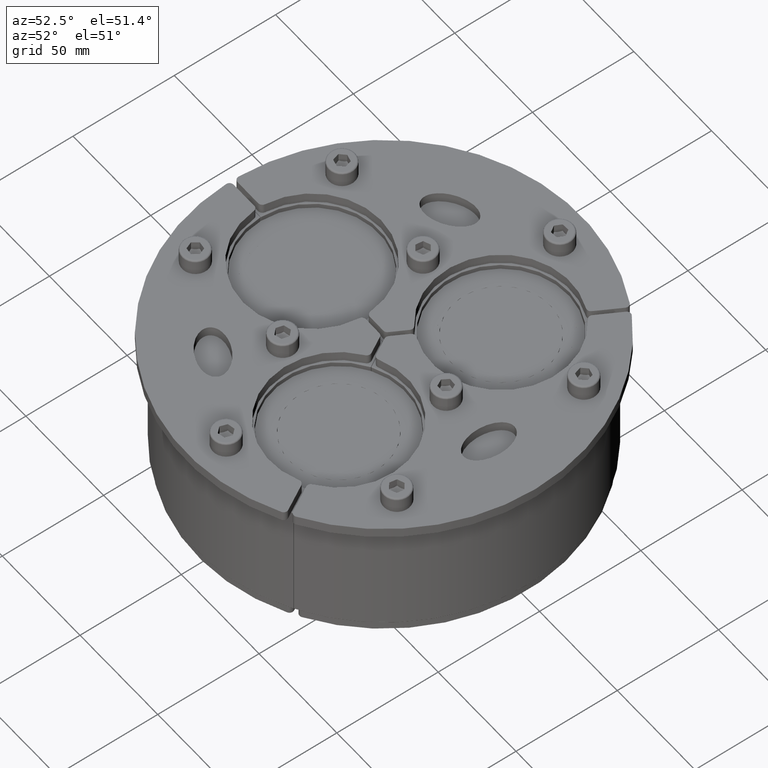
[diagram: clean part render]
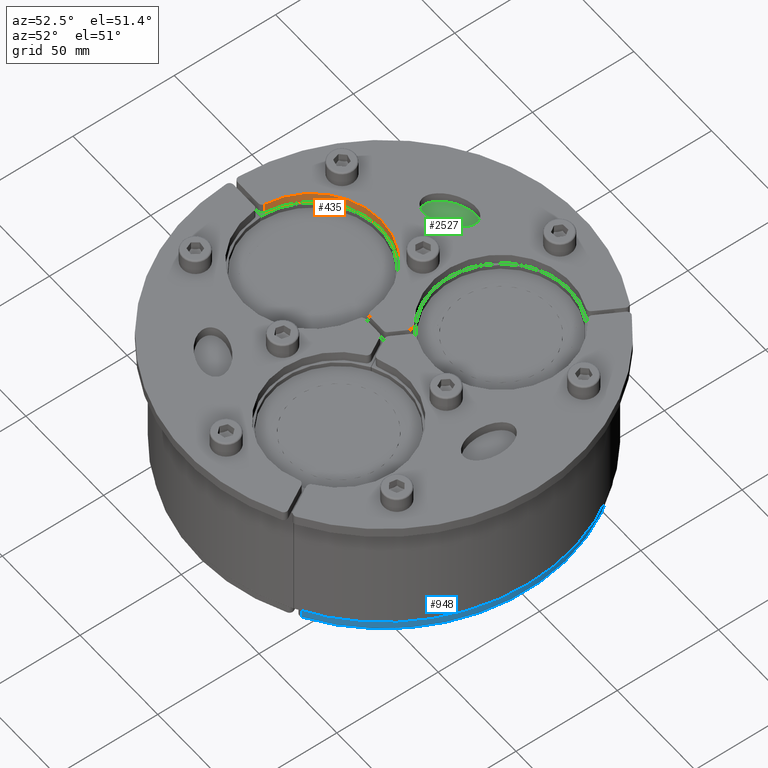
[diagram: same view with three faces highlighted in distinct colors, each labeled with its STEP entity id]
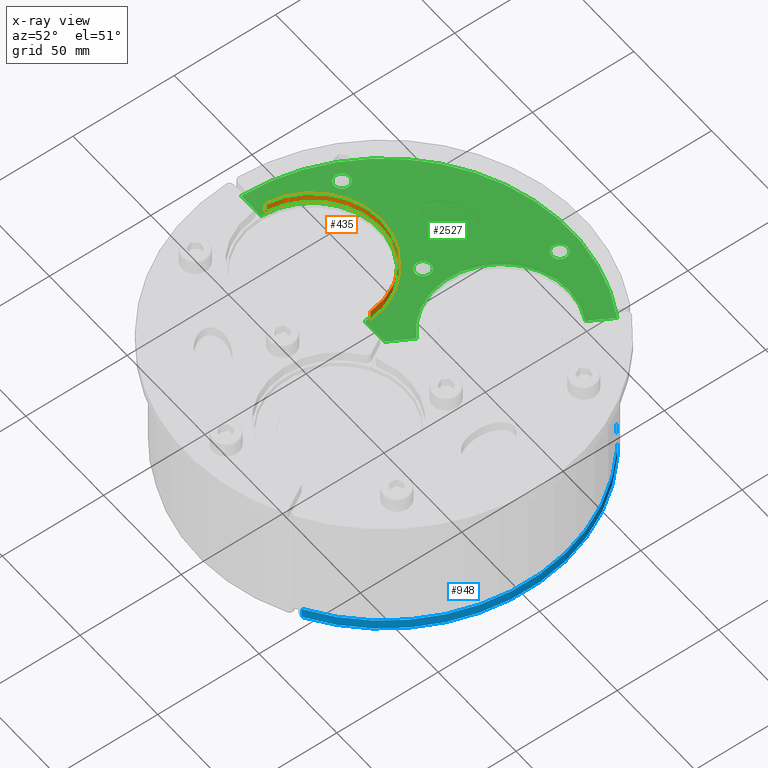
[diagram: x-ray of the same camera — body ghosted, the three highlighted faces saturated]
A machine part, auxiliary view with three faces highlighted in distinct colors.
The next image is the same camera in x-ray (body ghosted, the three faces saturated) — at least one of them is partly hidden behind the body in this view.
Their STEP definitions:

[orange] entity #435 — the highlighted cylindrical surface (partial cylindrical patch) has radius 34 mm, axis along (-0, -0, 1).
#245=CARTESIAN_POINT('',(37.612130742004354,70.812788092741613,0.0));
#246=VERTEX_POINT('',#245);
#254=CARTESIAN_POINT('',(3.730391969883773,12.127895090652308,0.0));
#255=VERTEX_POINT('',#254);
#256=CARTESIAN_POINT('',(23.124999999999972,40.0536749250303,0.0));
#257=DIRECTION('',(0.0,0.0,1.0));
#258=DIRECTION('',(-1.0,0.0,0.0));
#259=AXIS2_PLACEMENT_3D('',#256,#257,#258);
#260=CIRCLE('',#259,34.0);
#261=EDGE_CURVE('',#246,#255,#260,.T.);
#393=CARTESIAN_POINT('',(37.612130742004354,70.812788092741613,5.0));
#394=VERTEX_POINT('',#393);
#402=CARTESIAN_POINT('',(37.612130742004354,70.812788092741613,5.0));
#403=DIRECTION('',(0.0,0.0,-1.0));
#404=VECTOR('',#403,5.0);
#405=LINE('',#402,#404);
#406=EDGE_CURVE('',#394,#246,#405,.T.);
#411=CARTESIAN_POINT('',(23.124999999999972,40.0536749250303,5.0));
#412=DIRECTION('',(0.0,0.0,-1.0));
#413=DIRECTION('',(-1.0,0.0,0.0));
#414=AXIS2_PLACEMENT_3D('',#411,#412,#413);
#415=CYLINDRICAL_SURFACE('',#414,34.0);
#416=ORIENTED_EDGE('',*,*,#406,.F.);
#417=CARTESIAN_POINT('',(3.730391969883773,12.127895090652308,5.0));
#418=VERTEX_POINT('',#417);
#419=CARTESIAN_POINT('',(23.124999999999972,40.0536749250303,5.0));
#420=DIRECTION('',(0.0,0.0,-1.0));
#421=DIRECTION('',(-1.0,0.0,0.0));
#422=AXIS2_PLACEMENT_3D('',#419,#420,#421);
#423=CIRCLE('',#422,34.0);
#424=EDGE_CURVE('',#418,#394,#423,.T.);
#425=ORIENTED_EDGE('',*,*,#424,.F.);
#426=CARTESIAN_POINT('',(3.730391969883773,12.127895090652308,0.0));
#427=DIRECTION('',(0.0,0.0,1.0));
#428=VECTOR('',#427,5.0);
#429=LINE('',#426,#428);
#430=EDGE_CURVE('',#255,#418,#429,.T.);
#431=ORIENTED_EDGE('',*,*,#430,.F.);
#432=ORIENTED_EDGE('',*,*,#261,.F.);
#433=EDGE_LOOP('',(#416,#425,#431,#432));
#434=FACE_OUTER_BOUND('',#433,.T.);
#435=ADVANCED_FACE('',(#434),#415,.F.);

[blue] entity #948 — the highlighted cylindrical surface (partial cylindrical patch) has radius 91.5 mm, axis along (-0, 0, -1).
#879=CARTESIAN_POINT('',(43.068157551314059,80.73031527954781,5.0));
#880=VERTEX_POINT('',#879);
#898=CARTESIAN_POINT('',(43.068157551314059,80.73031527954781,0.0));
#899=VERTEX_POINT('',#898);
#907=CARTESIAN_POINT('',(43.068157551314066,80.730315279547824,0.0));
#908=DIRECTION('',(0.0,0.0,1.0));
#909=VECTOR('',#908,5.0);
#910=LINE('',#907,#909);
#911=EDGE_CURVE('',#899,#880,#910,.T.);
#916=CARTESIAN_POINT('',(0.0,0.0,0.0));
#917=DIRECTION('',(0.0,0.0,1.0));
#918=DIRECTION('',(0.490505380045763,0.871438163122411,0.0));
#919=AXIS2_PLACEMENT_3D('',#916,#917,#918);
#920=CYLINDRICAL_SURFACE('',#919,91.5);
#921=ORIENTED_EDGE('',*,*,#911,.F.);
#922=CARTESIAN_POINT('',(-91.448582663272475,3.067039106145245,0.0));
#923=VERTEX_POINT('',#922);
#924=CARTESIAN_POINT('',(0.0,0.0,0.0));
#925=DIRECTION('',(0.0,0.0,1.0));
#926=DIRECTION('',(0.490505380045763,0.871438163122411,0.0));
#927=AXIS2_PLACEMENT_3D('',#924,#925,#926);
#928=CIRCLE('',#927,91.5);
#929=EDGE_CURVE('',#899,#923,#928,.T.);
#930=ORIENTED_EDGE('',*,*,#929,.T.);
#931=CARTESIAN_POINT('',(-91.448582663272475,3.067039106145245,5.0));
#932=VERTEX_POINT('',#931);
#933=CARTESIAN_POINT('',(-91.448582663272475,3.067039106145245,5.0));
#934=DIRECTION('',(0.0,0.0,-1.0));
#935=VECTOR('',#934,5.0);
#936=LINE('',#933,#935);
#937=EDGE_CURVE('',#932,#923,#936,.T.);
#938=ORIENTED_EDGE('',*,*,#937,.F.);
#939=CARTESIAN_POINT('',(0.0,0.0,5.0));
#940=DIRECTION('',(0.0,0.0,-1.0));
#941=DIRECTION('',(0.490505380045763,0.871438163122411,0.0));
#942=AXIS2_PLACEMENT_3D('',#939,#940,#941);
#943=CIRCLE('',#942,91.5);
#944=EDGE_CURVE('',#932,#880,#943,.T.);
#945=ORIENTED_EDGE('',*,*,#944,.T.);
#946=EDGE_LOOP('',(#921,#930,#938,#945));
#947=FACE_OUTER_BOUND('',#946,.T.);
#948=ADVANCED_FACE('',(#947),#920,.T.);

[green] entity #2527 — the highlighted planar face has unit normal (0, 0, 1).
#2424=CARTESIAN_POINT('',(9.554909083890347,82.299034146435517,60.0));
#2425=VERTEX_POINT('',#2424);
#2426=CARTESIAN_POINT('',(5.754909083890345,82.299034146435517,60.0));
#2427=DIRECTION('',(0.0,0.0,1.0));
#2428=DIRECTION('',(-1.0,0.0,0.0));
#2429=AXIS2_PLACEMENT_3D('',#2426,#2427,#2428);
#2430=CIRCLE('',#2429,3.800000000000003);
#2431=EDGE_CURVE('',#2425,#2425,#2430,.T.);
#2436=CARTESIAN_POINT('',(-24.444747323088414,42.339544341772388,60.0));
#2437=DIRECTION('',(0.0,0.0,1.0));
#2438=DIRECTION('',(1.0,0.0,0.0));
#2439=AXIS2_PLACEMENT_3D('',#2436,#2437,#2438);
#2440=PLANE('',#2439);
#2441=CARTESIAN_POINT('',(-79.548648621227869,0.300000000000002,60.0));
#2442=VERTEX_POINT('',#2441);
#2443=CARTESIAN_POINT('',(-92.199511929293863,0.299999999999998,60.0));
#2444=VERTEX_POINT('',#2443);
#2445=CARTESIAN_POINT('',(-79.548648621227869,0.300000000000002,60.0));
#2446=DIRECTION('',(-1.0,0.0,0.0));
#2447=VECTOR('',#2446,12.650863308066008);
#2448=LINE('',#2445,#2447);
#2449=EDGE_CURVE('',#2442,#2444,#2448,.T.);
#2450=ORIENTED_EDGE('',*,*,#2449,.F.);
#2451=CARTESIAN_POINT('',(-12.951351378772141,0.300000000000004,60.0));
#2452=VERTEX_POINT('',#2451);
#2453=CARTESIAN_POINT('',(-46.25,0.0,60.0));
#2454=DIRECTION('',(0.0,0.0,1.0));
#2455=DIRECTION('',(0.0,1.0,0.0));
#2456=AXIS2_PLACEMENT_3D('',#2453,#2454,#2455);
#2457=CIRCLE('',#2456,33.299999999999997);
#2458=EDGE_CURVE('',#2452,#2442,#2457,.T.);
#2459=ORIENTED_EDGE('',*,*,#2458,.F.);
#2460=CARTESIAN_POINT('',(-0.173205080756889,0.300000000000002,60.0));
#2461=VERTEX_POINT('',#2460);
#2462=CARTESIAN_POINT('',(-0.173205080756887,0.300000000000002,60.0));
#2463=DIRECTION('',(-1.0,0.0,0.0));
#2464=VECTOR('',#2463,12.778146298015255);
#2465=LINE('',#2462,#2464);
#2466=EDGE_CURVE('',#2461,#2452,#2465,.T.);
#2467=ORIENTED_EDGE('',*,*,#2466,.F.);
#2468=CARTESIAN_POINT('',(6.215868068250727,11.366199307355282,60.0));
#2469=VERTEX_POINT('',#2468);
#2470=CARTESIAN_POINT('',(6.215868068250725,11.366199307355274,60.0));
#2471=DIRECTION('',(-0.5,-0.866025403784439,0.0));
#2472=VECTOR('',#2471,12.778146298015251);
#2473=LINE('',#2470,#2472);
#2474=EDGE_CURVE('',#2469,#2461,#2473,.T.);
#2475=ORIENTED_EDGE('',*,*,#2474,.F.);
#2476=CARTESIAN_POINT('',(39.514516689478569,69.04115054270531,60.0));
#2477=VERTEX_POINT('',#2476);
#2478=CARTESIAN_POINT('',(23.124999999999986,40.0536749250303,60.0));
#2479=DIRECTION('',(0.0,0.0,1.0));
#2480=DIRECTION('',(-0.866025403784439,0.499999999999999,0.0));
#2481=AXIS2_PLACEMENT_3D('',#2478,#2479,#2480);
#2482=CIRCLE('',#2481,33.299999999999997);
#2483=EDGE_CURVE('',#2477,#2469,#2482,.T.);
#2484=ORIENTED_EDGE('',*,*,#2483,.F.);
#2485=CARTESIAN_POINT('',(45.83994834351158,79.997119547294915,60.0));
#2486=VERTEX_POINT('',#2485);
#2487=CARTESIAN_POINT('',(45.83994834351158,79.997119547294915,60.0));
#2488=DIRECTION('',(-0.5,-0.866025403784438,0.0));
#2489=VECTOR('',#2488,12.650863308066013);
#2490=LINE('',#2487,#2489);
#2491=EDGE_CURVE('',#2486,#2477,#2490,.T.);
#2492=ORIENTED_EDGE('',*,*,#2491,.F.);
#2493=CARTESIAN_POINT('',(0.0,0.0,60.0));
#2494=DIRECTION('',(0.0,0.0,-1.0));
#2495=DIRECTION('',(-0.5,0.866025403784439,0.0));
#2496=AXIS2_PLACEMENT_3D('',#2493,#2494,#2495);
#2497=CIRCLE('',#2496,92.200000000000003);
#2498=EDGE_CURVE('',#2444,#2486,#2497,.T.);
#2499=ORIENTED_EDGE('',*,*,#2498,.F.);
#2500=EDGE_LOOP('',(#2450,#2459,#2467,#2475,#2484,#2492,#2499));
#2501=FACE_OUTER_BOUND('',#2500,.T.);
#2502=CARTESIAN_POINT('',(-16.200000000000006,34.641016151377542,60.0));
#2503=VERTEX_POINT('',#2502);
#2504=CARTESIAN_POINT('',(-20.000000000000004,34.641016151377542,60.0));
#2505=DIRECTION('',(0.0,0.0,1.0));
#2506=DIRECTION('',(-1.0,0.0,0.0));
#2507=AXIS2_PLACEMENT_3D('',#2504,#2505,#2506);
#2508=CIRCLE('',#2507,3.8);
#2509=EDGE_CURVE('',#2503,#2503,#2508,.T.);
#2510=ORIENTED_EDGE('',*,*,#2509,.F.);
#2511=EDGE_LOOP('',(#2510));
#2512=FACE_BOUND('',#2511,.T.);
#2513=CARTESIAN_POINT('',(-70.350508819681266,36.165619610098886,60.0));
#2514=VERTEX_POINT('',#2513);
#2515=CARTESIAN_POINT('',(-74.150508819681264,36.165619610098886,60.0));
#2516=DIRECTION('',(0.0,0.0,1.0));
#2517=DIRECTION('',(-1.0,0.0,0.0));
#2518=AXIS2_PLACEMENT_3D('',#2515,#2516,#2517);
#2519=CIRCLE('',#2518,3.800000000000003);
#2520=EDGE_CURVE('',#2514,#2514,#2519,.T.);
#2521=ORIENTED_EDGE('',*,*,#2520,.F.);
#2522=EDGE_LOOP('',(#2521));
#2523=FACE_BOUND('',#2522,.T.);
#2524=ORIENTED_EDGE('',*,*,#2431,.F.);
#2525=EDGE_LOOP('',(#2524));
#2526=FACE_BOUND('',#2525,.T.);
#2527=ADVANCED_FACE('',(#2501,#2512,#2523,#2526),#2440,.T.);